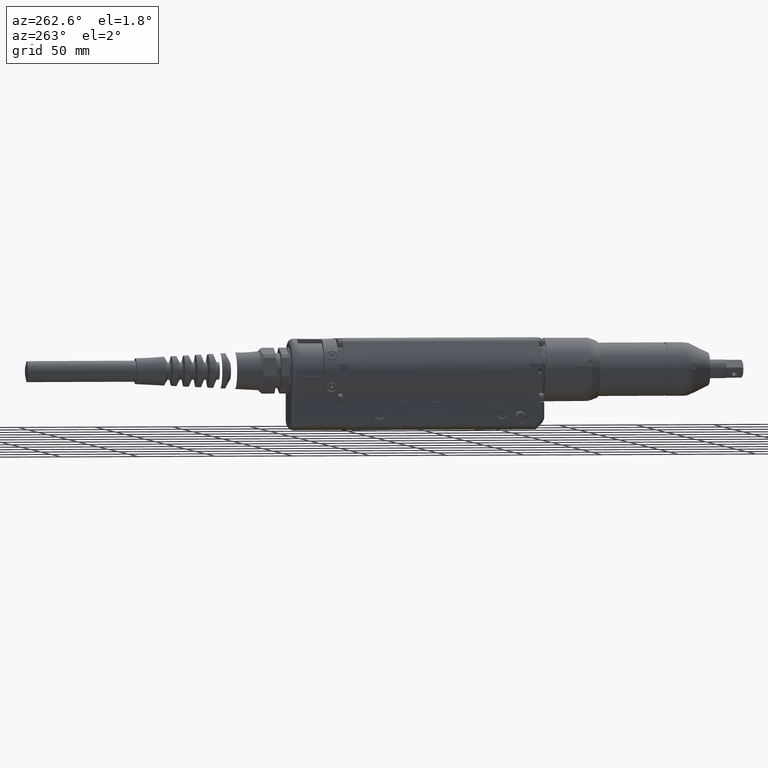
[diagram: clean part render]
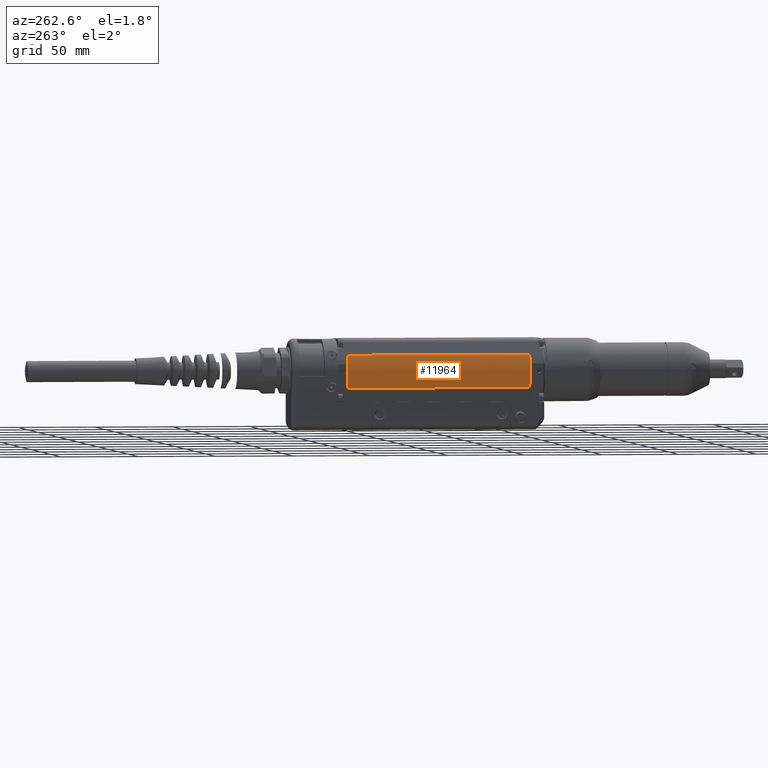
[diagram: same view with one face highlighted and labeled with its STEP entity id]
A machine part, auxiliary view. The second image highlights one B-rep face of the part: STEP entity #11964.
In plain terms, the highlighted cylindrical surface (edge-blend (fillet) strip) has radius 20.5 mm, axis along (-0, -1, -0).
Its self-contained STEP definition (entity closure, byte-faithful):
#1558=FACE_OUTER_BOUND('',#2273,.T.);
#2273=EDGE_LOOP('',(#8505,#8506,#8507,#8508,#8509,#8510,#8511,#8512));
#3120=LINE('',#18206,#4009);
#3122=LINE('',#18216,#4011);
#4009=VECTOR('',#14344,10.);
#4011=VECTOR('',#14354,10.);
#4841=CIRCLE('',#12784,20.5);
#4842=CIRCLE('',#12785,20.5);
#4843=CIRCLE('',#12786,20.5);
#4844=CIRCLE('',#12787,20.5);
#4845=CIRCLE('',#12788,20.5);
#4846=CIRCLE('',#12789,20.5);
#5559=VERTEX_POINT('',#18203);
#5560=VERTEX_POINT('',#18205);
#5561=VERTEX_POINT('',#18209);
#5562=VERTEX_POINT('',#18211);
#5563=VERTEX_POINT('',#18213);
#5564=VERTEX_POINT('',#18215);
#5565=VERTEX_POINT('',#18217);
#5566=VERTEX_POINT('',#18219);
#6711=EDGE_CURVE('',#5559,#5560,#3120,.T.);
#6713=EDGE_CURVE('',#5559,#5561,#4841,.T.);
#6714=EDGE_CURVE('',#5561,#5562,#4842,.T.);
#6715=EDGE_CURVE('',#5562,#5563,#4843,.T.);
#6716=EDGE_CURVE('',#5563,#5564,#3122,.T.);
#6717=EDGE_CURVE('',#5565,#5564,#4844,.T.);
#6718=EDGE_CURVE('',#5566,#5565,#4845,.T.);
#6719=EDGE_CURVE('',#5560,#5566,#4846,.T.);
#8505=ORIENTED_EDGE('',*,*,#6713,.T.);
#8506=ORIENTED_EDGE('',*,*,#6714,.T.);
#8507=ORIENTED_EDGE('',*,*,#6715,.T.);
#8508=ORIENTED_EDGE('',*,*,#6716,.T.);
#8509=ORIENTED_EDGE('',*,*,#6717,.F.);
#8510=ORIENTED_EDGE('',*,*,#6718,.F.);
#8511=ORIENTED_EDGE('',*,*,#6719,.F.);
#8512=ORIENTED_EDGE('',*,*,#6711,.F.);
#11695=CYLINDRICAL_SURFACE('',#12783,20.5);
#11964=ADVANCED_FACE('',(#1558),#11695,.T.);
#12783=AXIS2_PLACEMENT_3D('',#18208,#14346,#14347);
#12784=AXIS2_PLACEMENT_3D('',#18210,#14348,#14349);
#12785=AXIS2_PLACEMENT_3D('',#18212,#14350,#14351);
#12786=AXIS2_PLACEMENT_3D('',#18214,#14352,#14353);
#12787=AXIS2_PLACEMENT_3D('',#18218,#14355,#14356);
#12788=AXIS2_PLACEMENT_3D('',#18220,#14357,#14358);
#12789=AXIS2_PLACEMENT_3D('',#18221,#14359,#14360);
#14344=DIRECTION('',(-1.15255911821437E-13,-1.,-6.66133814775086E-16));
#14346=DIRECTION('center_axis',(-1.15255911821437E-13,-1.,-6.66133814775086E-16));
#14347=DIRECTION('ref_axis',(-0.866025403784129,9.94814806662799E-14,0.500000000000536));
#14348=DIRECTION('center_axis',(-1.15255911821437E-13,-1.,-6.66133814775086E-16));
#14349=DIRECTION('ref_axis',(-0.866025403784129,9.94814806662799E-14,0.500000000000536));
#14350=DIRECTION('center_axis',(-1.15255911821437E-13,-1.,-6.66133814775086E-16));
#14351=DIRECTION('ref_axis',(-0.866025403784129,9.94814806662799E-14,0.500000000000536));
#14352=DIRECTION('center_axis',(-1.15255911821437E-13,-1.,-6.66133814775086E-16));
#14353=DIRECTION('ref_axis',(-0.866025403784129,9.94814806662799E-14,0.500000000000536));
#14354=DIRECTION('',(-1.15255911821437E-13,-1.,-6.66133814775086E-16));
#14355=DIRECTION('center_axis',(-1.15255911821437E-13,-1.,-6.66133814775086E-16));
#14356=DIRECTION('ref_axis',(-0.866025403784129,9.94814806662799E-14,0.500000000000536));
#14357=DIRECTION('center_axis',(-1.15255911821437E-13,-1.,-6.66133814775086E-16));
#14358=DIRECTION('ref_axis',(-0.866025403784129,9.94814806662799E-14,0.500000000000536));
#14359=DIRECTION('center_axis',(-1.15255911821437E-13,-1.,-6.66133814775086E-16));
#14360=DIRECTION('ref_axis',(-0.866025403784129,9.94814806662799E-14,0.500000000000536));
#18203=CARTESIAN_POINT('',(-17.7535207775745,128.000000000001,10.2500000000115));
#18205=CARTESIAN_POINT('',(-17.7535207775881,10.0000000000009,10.2500000000114));
#18206=CARTESIAN_POINT('',(-17.7535207775745,128.000000000001,10.2500000000115));
#18208=CARTESIAN_POINT('Origin',(1.59063788972695E-13,127.999999999999,
4.65785357555374E-13));
#18209=CARTESIAN_POINT('',(-19.999999999997,128.000000000001,4.5000000000129));
#18210=CARTESIAN_POINT('Origin',(1.59063788972695E-13,127.999999999999,
4.65785357555374E-13));
#18211=CARTESIAN_POINT('',(-20.0000000000026,128.000000000001,-4.49999999998713));
#18212=CARTESIAN_POINT('Origin',(1.59063788972695E-13,127.999999999999,
4.65785357555374E-13));
#18213=CARTESIAN_POINT('',(-17.3239436619785,128.000000000001,-10.9604277287239));
#18214=CARTESIAN_POINT('Origin',(1.59063788972695E-13,127.999999999999,
4.65785357555374E-13));
#18215=CARTESIAN_POINT('',(-17.3239436619921,10.0000000000009,-10.960427728724));
#18216=CARTESIAN_POINT('',(-17.3239436619785,128.000000000001,-10.9604277287239));
#18217=CARTESIAN_POINT('',(-20.,10.,-4.49999999999999));
#18218=CARTESIAN_POINT('Origin',(-1.34411338059569E-11,9.99999999999885,
3.87181567411913E-13));
#18219=CARTESIAN_POINT('',(-20.,10.,4.50000000000003));
#18220=CARTESIAN_POINT('Origin',(-1.34411338059569E-11,9.99999999999885,
3.87181567411913E-13));
#18221=CARTESIAN_POINT('Origin',(-1.34411338059569E-11,9.99999999999885,
3.87181567411913E-13));